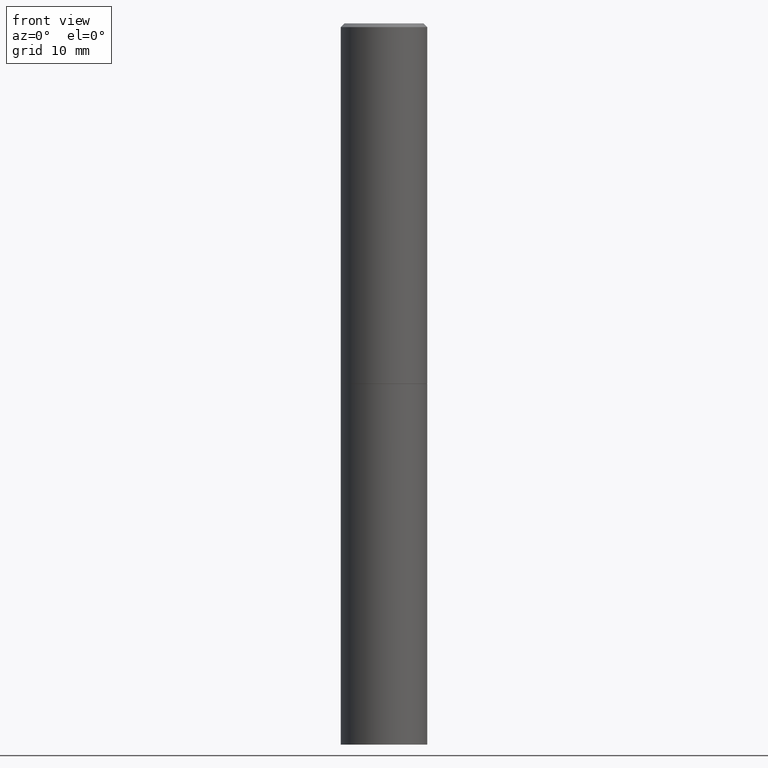
[diagram: clean part render]
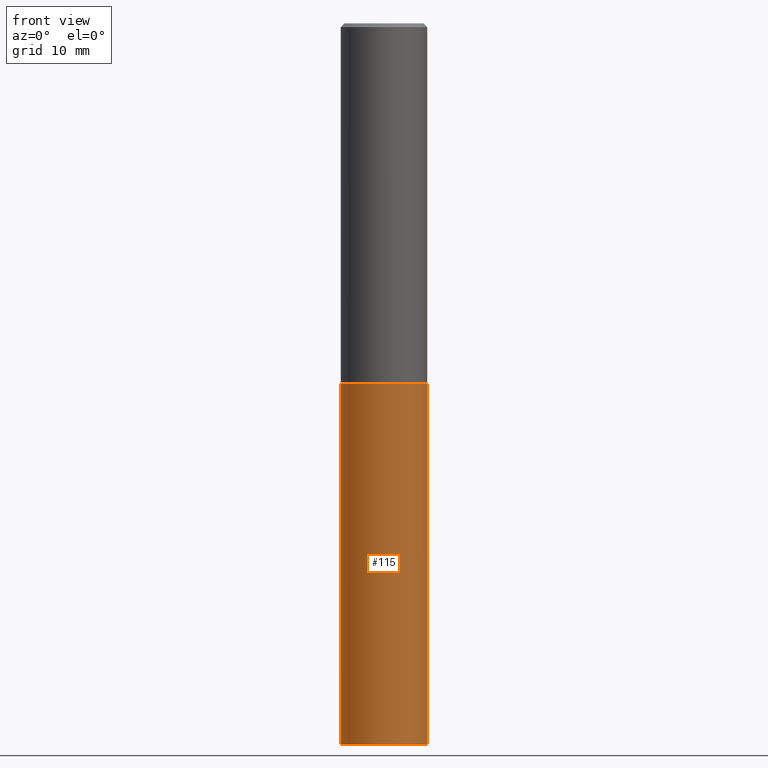
[diagram: same view with one face highlighted and labeled with its STEP entity id]
A machine part, front view. The second image highlights one B-rep face of the part: STEP entity #115.
In plain terms, the highlighted cylindrical surface (partial cylindrical patch) has radius 5.9995 mm, axis along (-0, 0, 1).
Its self-contained STEP definition (entity closure, byte-faithful):
#3 = CIRCLE ( 'NONE', #58, 0.2361999999999999933 ) ;
#12 = ORIENTED_EDGE ( 'NONE', *, *, #353, .T. ) ;
#13 = ORIENTED_EDGE ( 'NONE', *, *, #46, .F. ) ;
#37 = DIRECTION ( 'NONE',  ( 1.000000000000000000, -6.982962677686266711E-15, 4.876176775795936353E-29 ) ) ;
#46 = EDGE_CURVE ( 'NONE', #215, #230, #311, .T. ) ;
#48 = LINE ( 'NONE', #128, #254 ) ;
#58 = AXIS2_PLACEMENT_3D ( 'NONE', #337, #193, #79 ) ;
#68 = CARTESIAN_POINT ( 'NONE',  ( 0.000000000000000000, 0.000000000000000000, 0.000000000000000000 ) ) ;
#75 = DIRECTION ( 'NONE',  ( -2.445468806185136877E-29, 3.491481338843145188E-15, 1.000000000000000000 ) ) ;
#79 = DIRECTION ( 'NONE',  ( 1.000000000000000000, -6.982962677686265133E-15, 0.000000000000000000 ) ) ;
#114 = ORIENTED_EDGE ( 'NONE', *, *, #147, .F. ) ;
#115 = ADVANCED_FACE ( 'NONE', ( #322 ), #255, .T. ) ;
#118 = ORIENTED_EDGE ( 'NONE', *, *, #232, .T. ) ;
#128 = CARTESIAN_POINT ( 'NONE',  ( 0.2361999999999999933, -1.649375784469496131E-15, 1.151752954443000088E-29 ) ) ;
#138 = VERTEX_POINT ( 'NONE', #299 ) ;
#139 = CARTESIAN_POINT ( 'NONE',  ( -0.2361999999999999933, 1.678301941865356591E-15, -1.161852468318208757E-29 ) ) ;
#147 = EDGE_CURVE ( 'NONE', #138, #215, #333, .T. ) ;
#167 = VERTEX_POINT ( 'NONE', #173 ) ;
#173 = CARTESIAN_POINT ( 'NONE',  ( 0.2361999999999999933, -1.539533781549495994E-14, -3.937000000000000277 ) ) ;
#193 = DIRECTION ( 'NONE',  ( -2.445468806185136597E-29, 3.491481338843145583E-15, 1.000000000000000000 ) ) ;
#205 = CARTESIAN_POINT ( 'NONE',  ( -0.2361999999999999933, -8.631169581403741167E-15, -1.968499999999999694 ) ) ;
#214 = DIRECTION ( 'NONE',  ( -2.445468806185136877E-29, 3.491481338843145188E-15, 1.000000000000000000 ) ) ;
#215 = VERTEX_POINT ( 'NONE', #205 ) ;
#224 = AXIS2_PLACEMENT_3D ( 'NONE', #68, #284, #37 ) ;
#225 = CARTESIAN_POINT ( 'NONE',  ( 4.813905344975440714E-29, -6.872981015512730918E-15, -1.968499999999999694 ) ) ;
#230 = VERTEX_POINT ( 'NONE', #301 ) ;
#232 = EDGE_CURVE ( 'NONE', #138, #167, #3, .T. ) ;
#237 = AXIS2_PLACEMENT_3D ( 'NONE', #225, #313, #351 ) ;
#254 = VECTOR ( 'NONE', #214, 39.37007874015748143 ) ;
#255 = CYLINDRICAL_SURFACE ( 'NONE', #224, 0.2361999999999999933 ) ;
#267 = VECTOR ( 'NONE', #75, 39.37007874015748143 ) ;
#284 = DIRECTION ( 'NONE',  ( -2.445468806185136597E-29, 3.491481338843145583E-15, 1.000000000000000000 ) ) ;
#299 = CARTESIAN_POINT ( 'NONE',  ( -0.2361999999999999933, -8.631169581403741167E-15, -3.937000000000000277 ) ) ;
#301 = CARTESIAN_POINT ( 'NONE',  ( 0.2361999999999999933, -8.522356799982226655E-15, -1.968499999999999694 ) ) ;
#311 = CIRCLE ( 'NONE', #237, 0.2361999999999999933 ) ;
#313 = DIRECTION ( 'NONE',  ( -2.445468806185136597E-29, 3.491481338843145583E-15, 1.000000000000000000 ) ) ;
#322 = FACE_OUTER_BOUND ( 'NONE', #340, .T. ) ;
#333 = LINE ( 'NONE', #139, #267 ) ;
#337 = CARTESIAN_POINT ( 'NONE',  ( 9.627810689950883669E-29, -1.374596203102546341E-14, -3.937000000000000277 ) ) ;
#340 = EDGE_LOOP ( 'NONE', ( #114, #118, #12, #13 ) ) ;
#351 = DIRECTION ( 'NONE',  ( 1.000000000000000000, -6.982962677686265133E-15, 0.000000000000000000 ) ) ;
#353 = EDGE_CURVE ( 'NONE', #167, #230, #48, .T. ) ;